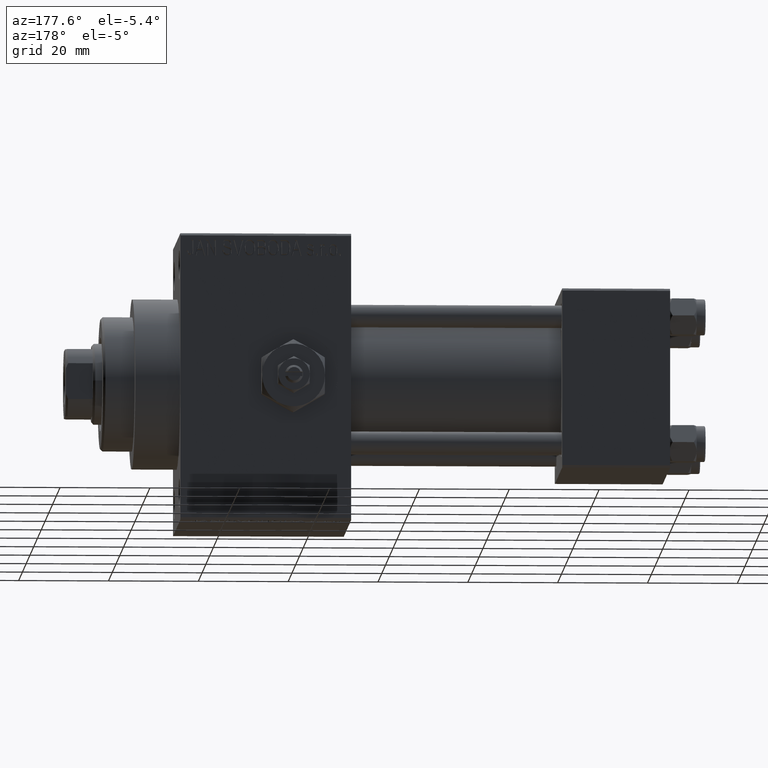
[diagram: clean part render]
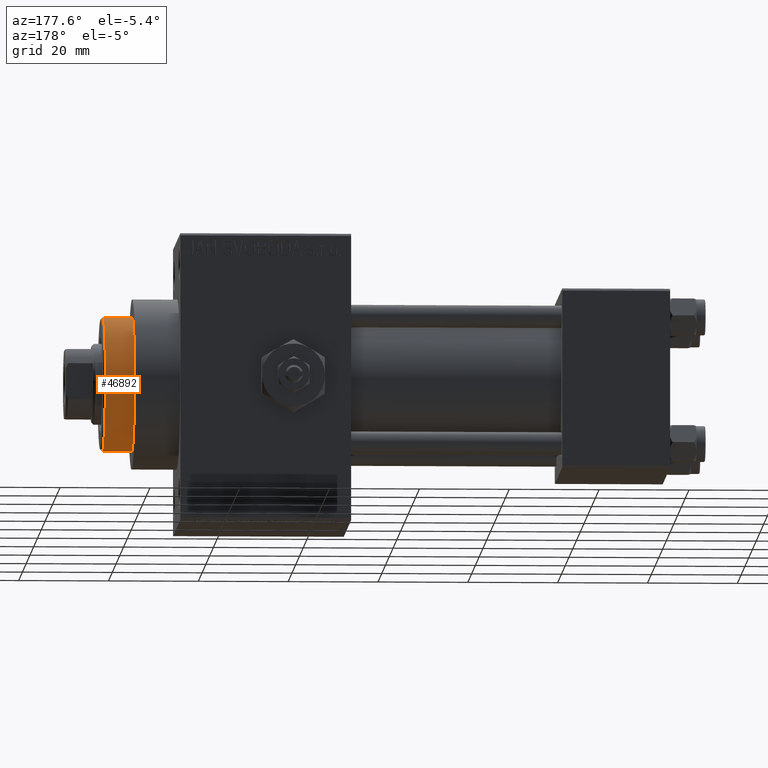
[diagram: same view with one face highlighted and labeled with its STEP entity id]
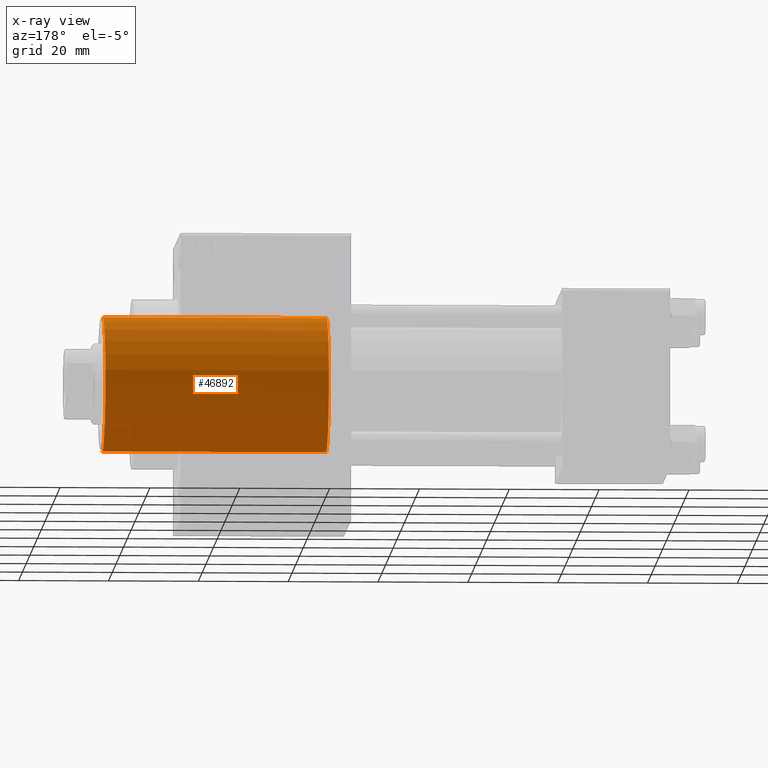
[diagram: x-ray of the same camera — body ghosted, the highlighted face saturated]
A machine part, auxiliary view. The second image highlights one B-rep face of the part: STEP entity #46892.
The next image is the same camera in x-ray: the body ghosted, the highlighted face saturated — about 1% of this face is hidden behind the body in this view.
In plain terms, the highlighted cylindrical surface (partial cylindrical patch) has radius 15 mm, axis along (-1, 0, 0).
Its self-contained STEP definition (entity closure, byte-faithful):
#401 = LINE ( 'NONE', #45459, #7561 ) ;
#757 = CARTESIAN_POINT ( 'NONE',  ( -15.00000000000000000, 0.000000000000000000, 49.75999999999998380 ) ) ;
#992 = CARTESIAN_POINT ( 'NONE',  ( 15.00000000000000000, 1.836970198721029589E-15, 49.75999999999998380 ) ) ;
#1799 = DIRECTION ( 'NONE',  ( -0.000000000000000000, -0.000000000000000000, -1.000000000000000000 ) ) ;
#3806 = ORIENTED_EDGE ( 'NONE', *, *, #24463, .T. ) ;
#5503 = CARTESIAN_POINT ( 'NONE',  ( -15.00000000000000000, 0.000000000000000000, 43.25999999999999801 ) ) ;
#5813 = EDGE_LOOP ( 'NONE', ( #21433, #41706, #3806, #25757 ) ) ;
#6527 = VERTEX_POINT ( 'NONE', #36087 ) ;
#7561 = VECTOR ( 'NONE', #26492, 1000.000000000000000 ) ;
#8081 = EDGE_CURVE ( 'NONE', #6527, #15796, #22401, .T. ) ;
#11478 = DIRECTION ( 'NONE',  ( 1.000000000000000000, 0.000000000000000000, 0.000000000000000000 ) ) ;
#12804 = DIRECTION ( 'NONE',  ( -1.000000000000000000, 0.000000000000000000, 0.000000000000000000 ) ) ;
#13682 = AXIS2_PLACEMENT_3D ( 'NONE', #31255, #35943, #12804 ) ;
#14405 = EDGE_CURVE ( 'NONE', #19482, #27348, #16271, .T. ) ;
#15168 = CARTESIAN_POINT ( 'NONE',  ( 0.000000000000000000, 0.000000000000000000, 49.75999999999998380 ) ) ;
#15796 = VERTEX_POINT ( 'NONE', #27878 ) ;
#16271 = CIRCLE ( 'NONE', #39878, 15.00000000000000000 ) ;
#16919 = EDGE_CURVE ( 'NONE', #19482, #15796, #401, .T. ) ;
#19482 = VERTEX_POINT ( 'NONE', #992 ) ;
#20917 = FACE_OUTER_BOUND ( 'NONE', #5813, .T. ) ;
#21433 = ORIENTED_EDGE ( 'NONE', *, *, #16919, .F. ) ;
#22401 = CIRCLE ( 'NONE', #39708, 15.00000000000000000 ) ;
#24463 = EDGE_CURVE ( 'NONE', #27348, #6527, #35051, .T. ) ;
#25757 = ORIENTED_EDGE ( 'NONE', *, *, #8081, .T. ) ;
#26492 = DIRECTION ( 'NONE',  ( -0.000000000000000000, -0.000000000000000000, -1.000000000000000000 ) ) ;
#27348 = VERTEX_POINT ( 'NONE', #757 ) ;
#27878 = CARTESIAN_POINT ( 'NONE',  ( 15.00000000000000000, 1.836970198721029589E-15, 0.000000000000000000 ) ) ;
#27941 = DIRECTION ( 'NONE',  ( 0.000000000000000000, 0.000000000000000000, 1.000000000000000000 ) ) ;
#31255 = CARTESIAN_POINT ( 'NONE',  ( 0.000000000000000000, 0.000000000000000000, 43.25999999999999801 ) ) ;
#33759 = VECTOR ( 'NONE', #1799, 1000.000000000000000 ) ;
#35051 = LINE ( 'NONE', #5503, #33759 ) ;
#35943 = DIRECTION ( 'NONE',  ( -0.000000000000000000, -0.000000000000000000, -1.000000000000000000 ) ) ;
#36087 = CARTESIAN_POINT ( 'NONE',  ( -15.00000000000000000, 0.000000000000000000, 0.000000000000000000 ) ) ;
#38790 = CARTESIAN_POINT ( 'NONE',  ( 0.000000000000000000, 0.000000000000000000, 0.000000000000000000 ) ) ;
#39708 = AXIS2_PLACEMENT_3D ( 'NONE', #38790, #27941, #42970 ) ;
#39878 = AXIS2_PLACEMENT_3D ( 'NONE', #15168, #44483, #11478 ) ;
#41706 = ORIENTED_EDGE ( 'NONE', *, *, #14405, .T. ) ;
#42970 = DIRECTION ( 'NONE',  ( 1.000000000000000000, 0.000000000000000000, 0.000000000000000000 ) ) ;
#43315 = CYLINDRICAL_SURFACE ( 'NONE', #13682, 15.00000000000000000 ) ;
#44483 = DIRECTION ( 'NONE',  ( 0.000000000000000000, 0.000000000000000000, -1.000000000000000000 ) ) ;
#45459 = CARTESIAN_POINT ( 'NONE',  ( 15.00000000000000000, 1.836970198721029589E-15, 43.25999999999999801 ) ) ;
#46892 = ADVANCED_FACE ( 'NONE', ( #20917 ), #43315, .T. ) ;